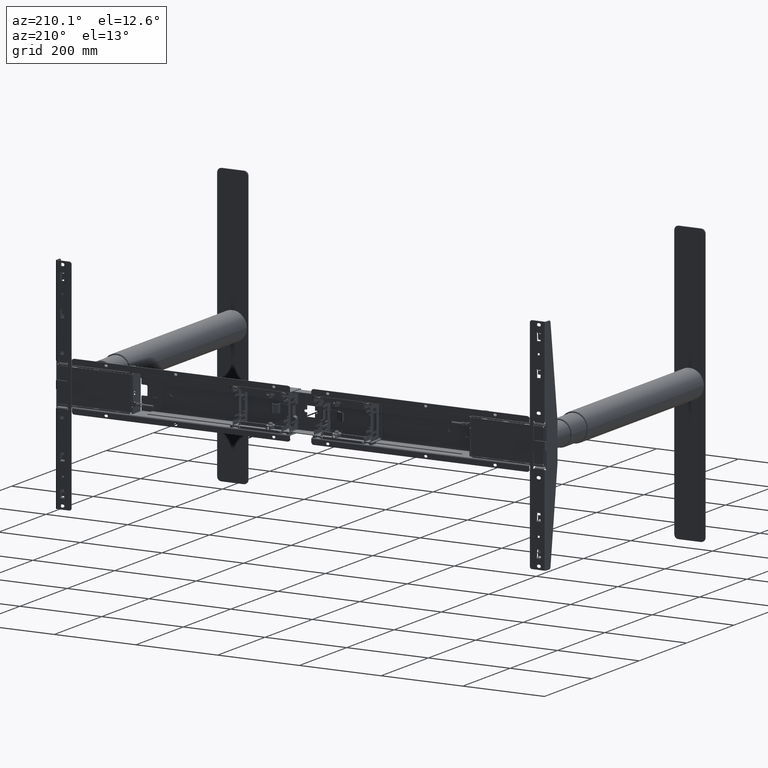
[diagram: clean part render]
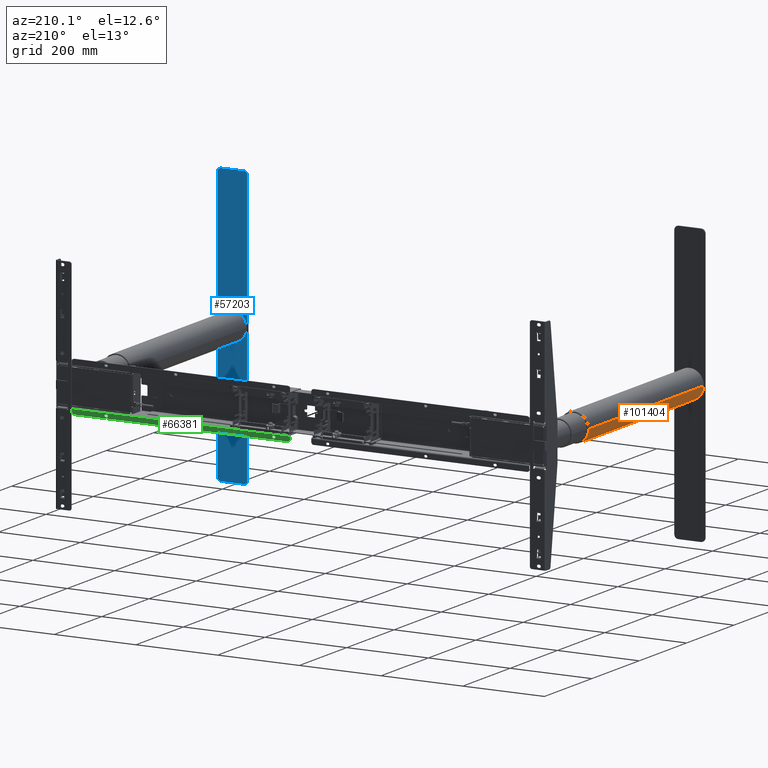
[diagram: same view with three faces highlighted in distinct colors, each labeled with its STEP entity id]
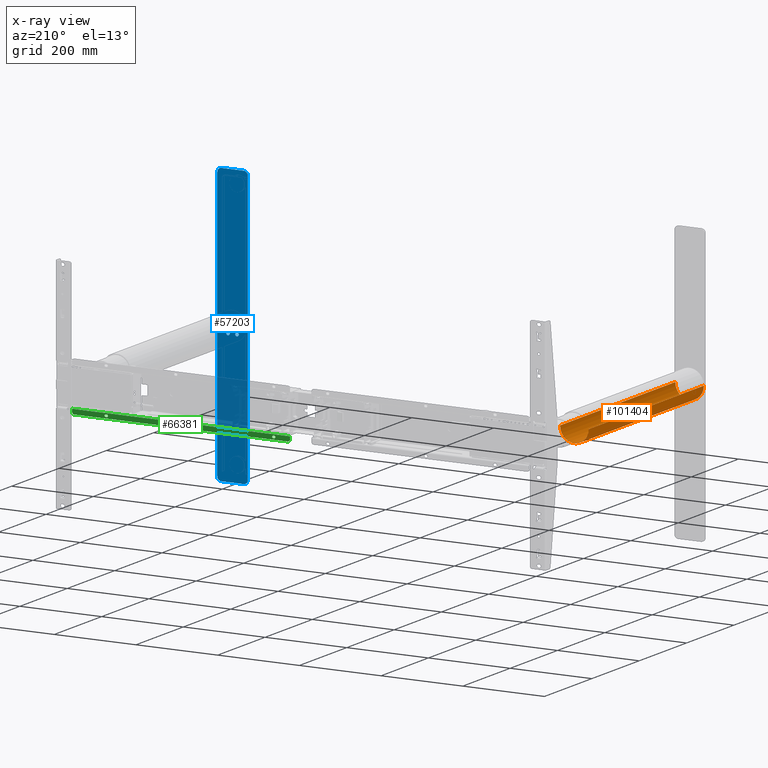
[diagram: x-ray of the same camera — body ghosted, the three highlighted faces saturated]
A machine part, auxiliary view with three faces highlighted in distinct colors.
The next image is the same camera in x-ray (body ghosted, the three faces saturated) — at least one of them is partly hidden behind the body in this view.
Their STEP definitions:

[orange] entity #101404 — the highlighted cylindrical surface (edge-blend (fillet) strip) has radius 35 mm, axis along (-0, -1, -0).
#341 = CARTESIAN_POINT ( 'NONE',  ( -559.5000000000000000, 27.09999999999788400, 9.110499691193323545E-14 ) ) ;
#2463 = CARTESIAN_POINT ( 'NONE',  ( -524.5000000000000000, 27.09999999999788045, 1.274977819952109655E-13 ) ) ;
#3546 = DIRECTION ( 'NONE',  ( -1.110223024625156540E-16, -1.000000000000000000, -1.494570229292720333E-16 ) ) ;
#8898 = EDGE_CURVE ( 'NONE', #22473, #12988, #31280, .T. ) ;
#11792 = AXIS2_PLACEMENT_3D ( 'NONE', #49158, #75175, #92356 ) ;
#12988 = VERTEX_POINT ( 'NONE', #96819 ) ;
#22473 = VERTEX_POINT ( 'NONE', #46096 ) ;
#31280 = LINE ( 'NONE', #90035, #97316 ) ;
#31908 = DIRECTION ( 'NONE',  ( 1.110223024625156540E-16, 1.000000000000000000, 1.494570229292720333E-16 ) ) ;
#33461 = DIRECTION ( 'NONE',  ( -1.110223024625156540E-16, -1.000000000000000000, -1.494570229292720333E-16 ) ) ;
#34124 = CIRCLE ( 'NONE', #108399, 35.00000000000002842 ) ;
#39146 = EDGE_CURVE ( 'NONE', #67488, #48380, #95003, .T. ) ;
#41702 = AXIS2_PLACEMENT_3D ( 'NONE', #72733, #54977, #51876 ) ;
#43237 = EDGE_CURVE ( 'NONE', #48380, #12988, #34124, .T. ) ;
#46096 = CARTESIAN_POINT ( 'NONE',  ( -594.4999999999998863, 514.0999999999978627, 1.317840457922267462E-13 ) ) ;
#48380 = VERTEX_POINT ( 'NONE', #2463 ) ;
#49158 = CARTESIAN_POINT ( 'NONE',  ( -559.4999999999998863, 514.0999999999978627, 1.638905670784887334E-13 ) ) ;
#51876 = DIRECTION ( 'NONE',  ( 1.000000000000000000, 0.000000000000000000, 0.000000000000000000 ) ) ;
#54977 = DIRECTION ( 'NONE',  ( -1.110223024625156540E-16, -1.000000000000000000, -1.494570229292720333E-16 ) ) ;
#57711 = VECTOR ( 'NONE', #3546, 1000.000000000000000 ) ;
#59510 = ORIENTED_EDGE ( 'NONE', *, *, #70687, .F. ) ;
#60190 = CYLINDRICAL_SURFACE ( 'NONE', #41702, 35.00000000000002842 ) ;
#63482 = ORIENTED_EDGE ( 'NONE', *, *, #8898, .F. ) ;
#63782 = EDGE_LOOP ( 'NONE', ( #63482, #59510, #93836, #85668 ) ) ;
#63878 = FACE_OUTER_BOUND ( 'NONE', #63782, .T. ) ;
#67488 = VERTEX_POINT ( 'NONE', #99492 ) ;
#70687 = EDGE_CURVE ( 'NONE', #67488, #22473, #89635, .T. ) ;
#72733 = CARTESIAN_POINT ( 'NONE',  ( -559.4999999999998863, 514.0999999999978627, 1.638905670784887334E-13 ) ) ;
#74588 = DIRECTION ( 'NONE',  ( -1.000000000000000000, 9.912705577010318154E-17, 0.000000000000000000 ) ) ;
#75175 = DIRECTION ( 'NONE',  ( 1.110223024625156540E-16, 1.000000000000000000, 1.494570229292720333E-16 ) ) ;
#85668 = ORIENTED_EDGE ( 'NONE', *, *, #43237, .T. ) ;
#89635 = CIRCLE ( 'NONE', #11792, 35.00000000000002842 ) ;
#90035 = CARTESIAN_POINT ( 'NONE',  ( -594.4999999999998863, 514.0999999999978627, 1.681768308755044636E-13 ) ) ;
#92356 = DIRECTION ( 'NONE',  ( -1.000000000000000000, 0.000000000000000000, 0.000000000000000000 ) ) ;
#93836 = ORIENTED_EDGE ( 'NONE', *, *, #39146, .T. ) ;
#95003 = LINE ( 'NONE', #105471, #57711 ) ;
#96819 = CARTESIAN_POINT ( 'NONE',  ( -594.5000000000000000, 27.09999999999788756, 1.317840457922268219E-13 ) ) ;
#97316 = VECTOR ( 'NONE', #33461, 1000.000000000000000 ) ;
#99492 = CARTESIAN_POINT ( 'NONE',  ( -524.4999999999998863, 514.0999999999978627, 1.274977819952110160E-13 ) ) ;
#101404 = ADVANCED_FACE ( 'NONE', ( #63878 ), #60190, .T. ) ;
#105471 = CARTESIAN_POINT ( 'NONE',  ( -524.4999999999998863, 514.0999999999978627, 1.638905670784887334E-13 ) ) ;
#108399 = AXIS2_PLACEMENT_3D ( 'NONE', #341, #31908, #74588 ) ;

[blue] entity #57203 — the highlighted planar face has unit normal (-0, 1, -0).
#354 = DIRECTION ( 'NONE',  ( 1.690145412092840586E-16, -1.000000000000000000, 2.981735092082834855E-17 ) ) ;
#1576 = CIRCLE ( 'NONE', #77649, 4.249999999999941380 ) ;
#1992 = EDGE_CURVE ( 'NONE', #54484, #64560, #7629, .T. ) ;
#2180 = CARTESIAN_POINT ( 'NONE',  ( 548.4999999999997726, 27.10000000000204778, 17.00000000000001421 ) ) ;
#3535 = CARTESIAN_POINT ( 'NONE',  ( 570.4999999999996589, 27.10000000000204778, -21.24999999999995737 ) ) ;
#3885 = CIRCLE ( 'NONE', #102999, 4.249999999999941380 ) ;
#4969 = DIRECTION ( 'NONE',  ( -9.540979117872389715E-17, 2.981735092082833006E-17, 1.000000000000000000 ) ) ;
#5404 = CARTESIAN_POINT ( 'NONE',  ( 596.9999999999996589, 27.10000000000212239, 329.9999999999989768 ) ) ;
#5615 = DIRECTION ( 'NONE',  ( 1.000000000000000000, 1.690145412092841325E-16, 9.540979117872495719E-17 ) ) ;
#5711 = CARTESIAN_POINT ( 'NONE',  ( 586.9999999999996589, 27.10000000000204778, -339.9999999999990905 ) ) ;
#7629 = CIRCLE ( 'NONE', #94065, 10.00000000000000888 ) ;
#7710 = VERTEX_POINT ( 'NONE', #64063 ) ;
#8270 = CARTESIAN_POINT ( 'NONE',  ( 548.4999999999998863, 27.10000000000204778, -12.75000000000007283 ) ) ;
#9042 = EDGE_LOOP ( 'NONE', ( #63050, #81483, #106113, #81785, #76589, #14093, #95821, #22510 ) ) ;
#9617 = CARTESIAN_POINT ( 'NONE',  ( 586.9999999999997726, 27.10000000000211884, 329.9999999999990905 ) ) ;
#10294 = VERTEX_POINT ( 'NONE', #5711 ) ;
#10566 = CARTESIAN_POINT ( 'NONE',  ( 548.4999999999998863, 27.10000000000204778, -17.00000000000001421 ) ) ;
#10627 = CARTESIAN_POINT ( 'NONE',  ( 548.4999999999998863, 27.10000000000204778, -17.00000000000001421 ) ) ;
#10668 = CARTESIAN_POINT ( 'NONE',  ( 586.9999999999996589, 27.10000000000211884, 339.9999999999990905 ) ) ;
#12368 = CIRCLE ( 'NONE', #69008, 4.249999999999941380 ) ;
#13919 = DIRECTION ( 'NONE',  ( 0.000000000000000000, 0.000000000000000000, 1.000000000000000000 ) ) ;
#14093 = ORIENTED_EDGE ( 'NONE', *, *, #52308, .F. ) ;
#15542 = CARTESIAN_POINT ( 'NONE',  ( 586.9999999999997726, 27.10000000000211884, 339.9999999999990905 ) ) ;
#16470 = FACE_BOUND ( 'NONE', #65989, .T. ) ;
#17077 = DIRECTION ( 'NONE',  ( 0.000000000000000000, 0.000000000000000000, -1.000000000000000000 ) ) ;
#18326 = CARTESIAN_POINT ( 'NONE',  ( 570.4999999999996589, 27.10000000000205134, 17.00000000000001421 ) ) ;
#19248 = DIRECTION ( 'NONE',  ( 0.000000000000000000, 0.000000000000000000, 1.000000000000000000 ) ) ;
#19988 = DIRECTION ( 'NONE',  ( 1.690145412092840586E-16, -1.000000000000000000, 2.981735092082834855E-17 ) ) ;
#20208 = EDGE_CURVE ( 'NONE', #82881, #54484, #22689, .T. ) ;
#21183 = EDGE_CURVE ( 'NONE', #92128, #84836, #81286, .T. ) ;
#21840 = CARTESIAN_POINT ( 'NONE',  ( 521.9999999999997726, 27.10000000000203357, -329.9999999999990337 ) ) ;
#21907 = EDGE_CURVE ( 'NONE', #84836, #92128, #84858, .T. ) ;
#22510 = ORIENTED_EDGE ( 'NONE', *, *, #95725, .F. ) ;
#22689 = LINE ( 'NONE', #73079, #89917 ) ;
#22997 = CARTESIAN_POINT ( 'NONE',  ( 570.4999999999996589, 27.10000000000205134, 12.75000000000007461 ) ) ;
#25094 = VECTOR ( 'NONE', #5615, 1000.000000000000000 ) ;
#25099 = VECTOR ( 'NONE', #79867, 1000.000000000000000 ) ;
#25165 = AXIS2_PLACEMENT_3D ( 'NONE', #101824, #58616, #17077 ) ;
#26230 = CIRCLE ( 'NONE', #79280, 4.249999999999941380 ) ;
#27864 = AXIS2_PLACEMENT_3D ( 'NONE', #100319, #73141, #13919 ) ;
#28097 = DIRECTION ( 'NONE',  ( 1.690145412092840586E-16, -1.000000000000000000, 2.981735092082834855E-17 ) ) ;
#28212 = DIRECTION ( 'NONE',  ( 0.000000000000000000, 0.000000000000000000, -1.000000000000000000 ) ) ;
#28696 = EDGE_LOOP ( 'NONE', ( #82349, #105681 ) ) ;
#28720 = CARTESIAN_POINT ( 'NONE',  ( 521.9999999999997726, 27.10000000000203357, -329.9999999999990337 ) ) ;
#28740 = DIRECTION ( 'NONE',  ( 1.690145412092840586E-16, -1.000000000000000000, 2.981735092082834855E-17 ) ) ;
#28846 = DIRECTION ( 'NONE',  ( 0.000000000000000000, 0.000000000000000000, 1.000000000000000000 ) ) ;
#29412 = ORIENTED_EDGE ( 'NONE', *, *, #95538, .T. ) ;
#32342 = DIRECTION ( 'NONE',  ( 1.690145412092840586E-16, -1.000000000000000000, 2.981735092082834855E-17 ) ) ;
#33480 = CARTESIAN_POINT ( 'NONE',  ( 548.4999999999997726, 27.10000000000204778, 21.24999999999995737 ) ) ;
#34762 = CIRCLE ( 'NONE', #57793, 9.999999999999953815 ) ;
#34797 = ORIENTED_EDGE ( 'NONE', *, *, #99861, .T. ) ;
#34968 = CARTESIAN_POINT ( 'NONE',  ( 531.9999999999997726, 27.10000000000198028, -339.9999999999990905 ) ) ;
#35915 = DIRECTION ( 'NONE',  ( 1.690145412092840586E-16, -1.000000000000000000, 2.981735092082834855E-17 ) ) ;
#36793 = CARTESIAN_POINT ( 'NONE',  ( 570.4999999999996589, 27.10000000000204778, -12.75000000000007461 ) ) ;
#37170 = LINE ( 'NONE', #10668, #25099 ) ;
#37850 = DIRECTION ( 'NONE',  ( 9.540979117872389715E-17, -2.981735092082833006E-17, -1.000000000000000000 ) ) ;
#38136 = ORIENTED_EDGE ( 'NONE', *, *, #94410, .T. ) ;
#38357 = VERTEX_POINT ( 'NONE', #28720 ) ;
#39973 = EDGE_CURVE ( 'NONE', #38357, #72374, #34762, .T. ) ;
#40357 = CARTESIAN_POINT ( 'NONE',  ( 531.9999999999997726, 27.10000000000205489, 339.9999999999990905 ) ) ;
#42138 = CIRCLE ( 'NONE', #65194, 4.249999999999941380 ) ;
#42227 = AXIS2_PLACEMENT_3D ( 'NONE', #58027, #107885, #108416 ) ;
#43436 = EDGE_LOOP ( 'NONE', ( #38136, #67007 ) ) ;
#44244 = DIRECTION ( 'NONE',  ( 0.000000000000000000, 0.000000000000000000, 1.000000000000000000 ) ) ;
#46206 = AXIS2_PLACEMENT_3D ( 'NONE', #70874, #28740, #28212 ) ;
#48415 = LINE ( 'NONE', #21840, #102404 ) ;
#50119 = CARTESIAN_POINT ( 'NONE',  ( 548.4999999999997726, 27.10000000000204778, 12.75000000000007283 ) ) ;
#51321 = ORIENTED_EDGE ( 'NONE', *, *, #21183, .T. ) ;
#51419 = VERTEX_POINT ( 'NONE', #3535 ) ;
#52308 = EDGE_CURVE ( 'NONE', #72374, #10294, #64906, .T. ) ;
#52673 = DIRECTION ( 'NONE',  ( 1.690145412092840586E-16, -1.000000000000000000, 2.981735092082834855E-17 ) ) ;
#52833 = EDGE_CURVE ( 'NONE', #91090, #7710, #106625, .T. ) ;
#54423 = CIRCLE ( 'NONE', #27864, 4.249999999999941380 ) ;
#54484 = VERTEX_POINT ( 'NONE', #5404 ) ;
#57203 = ADVANCED_FACE ( 'NONE', ( #16470, #91284, #66337, #66921, #83504 ), #57442, .T. ) ;
#57442 = PLANE ( 'NONE',  #42227 ) ;
#57793 = AXIS2_PLACEMENT_3D ( 'NONE', #82890, #74564, #91754 ) ;
#57972 = CARTESIAN_POINT ( 'NONE',  ( 570.4999999999996589, 27.10000000000204778, -17.00000000000001421 ) ) ;
#58027 = CARTESIAN_POINT ( 'NONE',  ( 531.9999999999996589, 27.10000000000205489, 329.9999999999990905 ) ) ;
#58332 = VERTEX_POINT ( 'NONE', #22997 ) ;
#58616 = DIRECTION ( 'NONE',  ( 1.690145412092840586E-16, -1.000000000000000000, 2.981735092082834855E-17 ) ) ;
#61810 = CARTESIAN_POINT ( 'NONE',  ( 570.4999999999996589, 27.10000000000205134, 21.24999999999995737 ) ) ;
#63050 = ORIENTED_EDGE ( 'NONE', *, *, #52833, .F. ) ;
#64063 = CARTESIAN_POINT ( 'NONE',  ( 521.9999999999996589, 27.10000000000210818, 329.9999999999989768 ) ) ;
#64560 = VERTEX_POINT ( 'NONE', #15542 ) ;
#64906 = LINE ( 'NONE', #105898, #25094 ) ;
#65194 = AXIS2_PLACEMENT_3D ( 'NONE', #2180, #35915, #44244 ) ;
#65989 = EDGE_LOOP ( 'NONE', ( #29412, #34797 ) ) ;
#66337 = FACE_BOUND ( 'NONE', #28696, .T. ) ;
#66921 = FACE_BOUND ( 'NONE', #67698, .T. ) ;
#67007 = ORIENTED_EDGE ( 'NONE', *, *, #97452, .T. ) ;
#67698 = EDGE_LOOP ( 'NONE', ( #51321, #77430 ) ) ;
#69008 = AXIS2_PLACEMENT_3D ( 'NONE', #18326, #52673, #78141 ) ;
#69134 = CARTESIAN_POINT ( 'NONE',  ( 570.4999999999996589, 27.10000000000204778, -17.00000000000001421 ) ) ;
#70747 = VERTEX_POINT ( 'NONE', #61810 ) ;
#70874 = CARTESIAN_POINT ( 'NONE',  ( 586.9999999999997726, 27.10000000000204778, -329.9999999999990905 ) ) ;
#72374 = VERTEX_POINT ( 'NONE', #34968 ) ;
#72480 = AXIS2_PLACEMENT_3D ( 'NONE', #10627, #19988, #28846 ) ;
#73079 = CARTESIAN_POINT ( 'NONE',  ( 596.9999999999997726, 27.10000000000204778, -329.9999999999990337 ) ) ;
#73141 = DIRECTION ( 'NONE',  ( 1.690145412092840586E-16, -1.000000000000000000, 2.981735092082834855E-17 ) ) ;
#73963 = VERTEX_POINT ( 'NONE', #50119 ) ;
#74564 = DIRECTION ( 'NONE',  ( 1.690145412092840586E-16, -1.000000000000000000, 2.981735092082834855E-17 ) ) ;
#74882 = EDGE_CURVE ( 'NONE', #10294, #82881, #94033, .T. ) ;
#75265 = CARTESIAN_POINT ( 'NONE',  ( 548.4999999999997726, 27.10000000000204778, 17.00000000000001421 ) ) ;
#76589 = ORIENTED_EDGE ( 'NONE', *, *, #74882, .F. ) ;
#77069 = DIRECTION ( 'NONE',  ( 0.000000000000000000, 0.000000000000000000, 1.000000000000000000 ) ) ;
#77430 = ORIENTED_EDGE ( 'NONE', *, *, #21907, .T. ) ;
#77649 = AXIS2_PLACEMENT_3D ( 'NONE', #57972, #354, #91793 ) ;
#78141 = DIRECTION ( 'NONE',  ( 0.000000000000000000, 0.000000000000000000, 1.000000000000000000 ) ) ;
#79280 = AXIS2_PLACEMENT_3D ( 'NONE', #75265, #105060, #19248 ) ;
#79867 = DIRECTION ( 'NONE',  ( -1.000000000000000000, -1.690145412092841325E-16, -9.540979117872495719E-17 ) ) ;
#81286 = CIRCLE ( 'NONE', #95421, 4.249999999999943157 ) ;
#81483 = ORIENTED_EDGE ( 'NONE', *, *, #99602, .F. ) ;
#81785 = ORIENTED_EDGE ( 'NONE', *, *, #20208, .F. ) ;
#82349 = ORIENTED_EDGE ( 'NONE', *, *, #92934, .T. ) ;
#82881 = VERTEX_POINT ( 'NONE', #107200 ) ;
#82890 = CARTESIAN_POINT ( 'NONE',  ( 531.9999999999997726, 27.10000000000198028, -329.9999999999990905 ) ) ;
#83504 = FACE_OUTER_BOUND ( 'NONE', #9042, .T. ) ;
#84836 = VERTEX_POINT ( 'NONE', #108623 ) ;
#84858 = CIRCLE ( 'NONE', #72480, 4.249999999999943157 ) ;
#85919 = DIRECTION ( 'NONE',  ( 1.690145412092840586E-16, -1.000000000000000000, 2.981735092082834855E-17 ) ) ;
#87669 = DIRECTION ( 'NONE',  ( 0.000000000000000000, 0.000000000000000000, 1.000000000000000000 ) ) ;
#89917 = VECTOR ( 'NONE', #4969, 1000.000000000000000 ) ;
#91090 = VERTEX_POINT ( 'NONE', #40357 ) ;
#91284 = FACE_BOUND ( 'NONE', #43436, .T. ) ;
#91754 = DIRECTION ( 'NONE',  ( 0.000000000000000000, 0.000000000000000000, -1.000000000000000000 ) ) ;
#91793 = DIRECTION ( 'NONE',  ( 0.000000000000000000, 0.000000000000000000, 1.000000000000000000 ) ) ;
#92128 = VERTEX_POINT ( 'NONE', #8270 ) ;
#92934 = EDGE_CURVE ( 'NONE', #104373, #73963, #42138, .T. ) ;
#94033 = CIRCLE ( 'NONE', #46206, 9.999999999999953815 ) ;
#94065 = AXIS2_PLACEMENT_3D ( 'NONE', #9617, #32342, #87669 ) ;
#94410 = EDGE_CURVE ( 'NONE', #70747, #58332, #54423, .T. ) ;
#95421 = AXIS2_PLACEMENT_3D ( 'NONE', #10566, #85919, #77069 ) ;
#95538 = EDGE_CURVE ( 'NONE', #95634, #51419, #1576, .T. ) ;
#95634 = VERTEX_POINT ( 'NONE', #36793 ) ;
#95725 = EDGE_CURVE ( 'NONE', #7710, #38357, #48415, .T. ) ;
#95821 = ORIENTED_EDGE ( 'NONE', *, *, #39973, .F. ) ;
#97452 = EDGE_CURVE ( 'NONE', #58332, #70747, #12368, .T. ) ;
#99602 = EDGE_CURVE ( 'NONE', #64560, #91090, #37170, .T. ) ;
#99861 = EDGE_CURVE ( 'NONE', #51419, #95634, #3885, .T. ) ;
#100319 = CARTESIAN_POINT ( 'NONE',  ( 570.4999999999996589, 27.10000000000205134, 17.00000000000001421 ) ) ;
#101824 = CARTESIAN_POINT ( 'NONE',  ( 531.9999999999996589, 27.10000000000205489, 329.9999999999990905 ) ) ;
#102404 = VECTOR ( 'NONE', #37850, 1000.000000000000000 ) ;
#102923 = DIRECTION ( 'NONE',  ( 0.000000000000000000, 0.000000000000000000, 1.000000000000000000 ) ) ;
#102999 = AXIS2_PLACEMENT_3D ( 'NONE', #69134, #28097, #102923 ) ;
#104373 = VERTEX_POINT ( 'NONE', #33480 ) ;
#105060 = DIRECTION ( 'NONE',  ( 1.690145412092840586E-16, -1.000000000000000000, 2.981735092082834855E-17 ) ) ;
#105681 = ORIENTED_EDGE ( 'NONE', *, *, #105726, .T. ) ;
#105726 = EDGE_CURVE ( 'NONE', #73963, #104373, #26230, .T. ) ;
#105898 = CARTESIAN_POINT ( 'NONE',  ( 586.9999999999996589, 27.10000000000204778, -339.9999999999990905 ) ) ;
#106113 = ORIENTED_EDGE ( 'NONE', *, *, #1992, .F. ) ;
#106625 = CIRCLE ( 'NONE', #25165, 10.00000000000000888 ) ;
#107200 = CARTESIAN_POINT ( 'NONE',  ( 596.9999999999997726, 27.10000000000204778, -329.9999999999990337 ) ) ;
#107885 = DIRECTION ( 'NONE',  ( -1.690145412092840339E-16, 1.000000000000000000, -2.981735092082834238E-17 ) ) ;
#108416 = DIRECTION ( 'NONE',  ( 9.540979117872389715E-17, -2.981735092082832390E-17, -1.000000000000000000 ) ) ;
#108623 = CARTESIAN_POINT ( 'NONE',  ( 548.4999999999998863, 27.10000000000204778, -21.24999999999995737 ) ) ;

[green] entity #66381 — the highlighted planar face has unit normal (0, 1, -0).
#1108 = EDGE_CURVE ( 'NONE', #61897, #64429, #97697, .T. ) ;
#2876 = DIRECTION ( 'NONE',  ( -1.000000000000000000, -0.000000000000000000, -0.000000000000000000 ) ) ;
#3303 = CARTESIAN_POINT ( 'NONE',  ( 25.99999999999974420, 704.4999999999989768, -48.50000000000002132 ) ) ;
#3364 = PLANE ( 'NONE',  #27847 ) ;
#4624 = VECTOR ( 'NONE', #90506, 1000.000000000000000 ) ;
#6304 = AXIS2_PLACEMENT_3D ( 'NONE', #100067, #32420, #24143 ) ;
#8379 = AXIS2_PLACEMENT_3D ( 'NONE', #68952, #102738, #26812 ) ;
#8399 = VERTEX_POINT ( 'NONE', #9725 ) ;
#8485 = EDGE_CURVE ( 'NONE', #43291, #25904, #43919, .T. ) ;
#8742 = EDGE_CURVE ( 'NONE', #54459, #20204, #69561, .T. ) ;
#9725 = CARTESIAN_POINT ( 'NONE',  ( 553.9999999999997726, 704.4999999999989768, -60.50000000000002132 ) ) ;
#10585 = VERTEX_POINT ( 'NONE', #47673 ) ;
#11122 = VECTOR ( 'NONE', #42389, 1000.000000000000000 ) ;
#13275 = CIRCLE ( 'NONE', #78725, 2.750000000000002665 ) ;
#14641 = CARTESIAN_POINT ( 'NONE',  ( 67.24999999999978684, 704.4999999999990905, -51.74999999999997158 ) ) ;
#14897 = LINE ( 'NONE', #57521, #11122 ) ;
#15319 = VECTOR ( 'NONE', #61880, 1000.000000000000000 ) ;
#15841 = LINE ( 'NONE', #49602, #25876 ) ;
#16758 = ORIENTED_EDGE ( 'NONE', *, *, #1108, .T. ) ;
#16896 = ORIENTED_EDGE ( 'NONE', *, *, #46002, .F. ) ;
#17623 = CARTESIAN_POINT ( 'NONE',  ( 25.99999999999974420, 704.4999999999989768, -47.00000000000002132 ) ) ;
#18363 = EDGE_LOOP ( 'NONE', ( #32561, #96086, #72936, #47950 ) ) ;
#19636 = DIRECTION ( 'NONE',  ( 0.000000000000000000, 1.000000000000000000, 5.139921410301652768E-16 ) ) ;
#19959 = FACE_BOUND ( 'NONE', #101167, .T. ) ;
#20204 = VERTEX_POINT ( 'NONE', #3303 ) ;
#20304 = EDGE_CURVE ( 'NONE', #25904, #10585, #25378, .T. ) ;
#20446 = DIRECTION ( 'NONE',  ( 0.000000000000000000, 0.000000000000000000, -1.000000000000000000 ) ) ;
#20689 = VECTOR ( 'NONE', #66771, 1000.000000000000000 ) ;
#21897 = CARTESIAN_POINT ( 'NONE',  ( 559.9999999999998863, 704.4999999999989768, -54.50000000000002132 ) ) ;
#24032 = CARTESIAN_POINT ( 'NONE',  ( 474.7499999999997158, 704.4999999999989768, -51.74999999999997158 ) ) ;
#24081 = LINE ( 'NONE', #57874, #20689 ) ;
#24143 = DIRECTION ( 'NONE',  ( 0.000000000000000000, 0.000000000000000000, -1.000000000000000000 ) ) ;
#24323 = ORIENTED_EDGE ( 'NONE', *, *, #8742, .F. ) ;
#25378 = LINE ( 'NONE', #82501, #97092 ) ;
#25669 = ORIENTED_EDGE ( 'NONE', *, *, #35330, .F. ) ;
#25876 = VECTOR ( 'NONE', #109442, 1000.000000000000000 ) ;
#25904 = VERTEX_POINT ( 'NONE', #33298 ) ;
#26072 = CIRCLE ( 'NONE', #8379, 2.750000000000002665 ) ;
#26362 = CARTESIAN_POINT ( 'NONE',  ( 304.7499999999997158, 704.4999999999989768, -51.74999999999997158 ) ) ;
#26692 = AXIS2_PLACEMENT_3D ( 'NONE', #96072, #19636, #36784 ) ;
#26812 = DIRECTION ( 'NONE',  ( 0.000000000000000000, 0.000000000000000000, -1.000000000000000000 ) ) ;
#26984 = LINE ( 'NONE', #17623, #15319 ) ;
#27847 = AXIS2_PLACEMENT_3D ( 'NONE', #37105, #70943, #28817 ) ;
#28817 = DIRECTION ( 'NONE',  ( 0.000000000000000000, 5.139921410301652768E-16, 1.000000000000000000 ) ) ;
#30087 = AXIS2_PLACEMENT_3D ( 'NONE', #96343, #35443, #20446 ) ;
#30127 = CARTESIAN_POINT ( 'NONE',  ( 67.24999999999978684, 704.4999999999990905, -54.49999999999997158 ) ) ;
#31323 = EDGE_CURVE ( 'NONE', #87420, #43291, #24081, .T. ) ;
#32420 = DIRECTION ( 'NONE',  ( 0.000000000000000000, 1.000000000000000000, 5.139921410301652768E-16 ) ) ;
#32561 = ORIENTED_EDGE ( 'NONE', *, *, #48332, .F. ) ;
#33298 = CARTESIAN_POINT ( 'NONE',  ( 67.24999999999978684, 704.4999999999990905, -57.24999999999997158 ) ) ;
#34665 = CARTESIAN_POINT ( 'NONE',  ( 537.9999999999997726, 704.4999999999989768, -48.50000000000002132 ) ) ;
#34977 = EDGE_CURVE ( 'NONE', #74960, #75426, #99173, .T. ) ;
#35330 = EDGE_CURVE ( 'NONE', #101714, #36759, #88611, .T. ) ;
#35443 = DIRECTION ( 'NONE',  ( 0.000000000000000000, 1.000000000000000000, 5.139921410301652768E-16 ) ) ;
#35706 = DIRECTION ( 'NONE',  ( 0.000000000000000000, 1.000000000000000000, -5.139921410301652768E-16 ) ) ;
#36759 = VERTEX_POINT ( 'NONE', #26362 ) ;
#36784 = DIRECTION ( 'NONE',  ( 0.000000000000000000, 0.000000000000000000, -1.000000000000000000 ) ) ;
#36785 = DIRECTION ( 'NONE',  ( 0.000000000000000000, 0.000000000000000000, 1.000000000000000000 ) ) ;
#37105 = CARTESIAN_POINT ( 'NONE',  ( 537.9999999999997726, 704.4999999999989768, -47.00000000000002132 ) ) ;
#37709 = CARTESIAN_POINT ( 'NONE',  ( 537.9999999999997726, 704.4999999999989768, -60.50000000000002132 ) ) ;
#41633 = EDGE_CURVE ( 'NONE', #8399, #61897, #106990, .T. ) ;
#42389 = DIRECTION ( 'NONE',  ( 0.000000000000000000, -5.139921410301652768E-16, -1.000000000000000000 ) ) ;
#43291 = VERTEX_POINT ( 'NONE', #14641 ) ;
#43466 = EDGE_CURVE ( 'NONE', #54459, #90487, #14897, .T. ) ;
#43486 = CARTESIAN_POINT ( 'NONE',  ( 31.99999999999975131, 704.4999999999989768, -54.50000000000002132 ) ) ;
#43490 = ORIENTED_EDGE ( 'NONE', *, *, #82332, .F. ) ;
#43720 = CARTESIAN_POINT ( 'NONE',  ( 553.9999999999997726, 704.4999999999989768, -54.50000000000002132 ) ) ;
#43919 = CIRCLE ( 'NONE', #93473, 2.750000000000002665 ) ;
#44066 = EDGE_LOOP ( 'NONE', ( #54386, #16758, #43490, #24323, #47628, #83679 ) ) ;
#45081 = DIRECTION ( 'NONE',  ( 0.000000000000000000, 1.000000000000000000, 5.139921410301652768E-16 ) ) ;
#45363 = VECTOR ( 'NONE', #2876, 1000.000000000000000 ) ;
#46002 = EDGE_CURVE ( 'NONE', #51103, #108171, #13275, .T. ) ;
#47628 = ORIENTED_EDGE ( 'NONE', *, *, #43466, .T. ) ;
#47673 = CARTESIAN_POINT ( 'NONE',  ( 64.74999999999975842, 704.4999999999990905, -57.24999999999997158 ) ) ;
#47950 = ORIENTED_EDGE ( 'NONE', *, *, #31323, .F. ) ;
#48332 = EDGE_CURVE ( 'NONE', #10585, #87420, #103548, .T. ) ;
#49206 = AXIS2_PLACEMENT_3D ( 'NONE', #43720, #59837, #94167 ) ;
#49402 = EDGE_CURVE ( 'NONE', #75426, #51103, #108201, .T. ) ;
#49602 = CARTESIAN_POINT ( 'NONE',  ( 304.7499999999997158, 704.4999999999990905, -51.74999999999997158 ) ) ;
#51103 = VERTEX_POINT ( 'NONE', #64184 ) ;
#52793 = CARTESIAN_POINT ( 'NONE',  ( 477.2499999999997158, 704.4999999999990905, -54.49999999999997158 ) ) ;
#53275 = CARTESIAN_POINT ( 'NONE',  ( 474.7499999999997158, 704.4999999999990905, -57.24999999999997158 ) ) ;
#53746 = FACE_OUTER_BOUND ( 'NONE', #44066, .T. ) ;
#54386 = ORIENTED_EDGE ( 'NONE', *, *, #41633, .T. ) ;
#54397 = DIRECTION ( 'NONE',  ( 0.000000000000000000, 1.000000000000000000, 5.139921410301652768E-16 ) ) ;
#54459 = VERTEX_POINT ( 'NONE', #85257 ) ;
#57499 = CARTESIAN_POINT ( 'NONE',  ( 25.99999999999974420, 704.4999999999989768, -54.50000000000002132 ) ) ;
#57521 = CARTESIAN_POINT ( 'NONE',  ( 559.9999999999998863, 704.4999999999989768, -47.00000000000002132 ) ) ;
#57874 = CARTESIAN_POINT ( 'NONE',  ( 64.74999999999975842, 704.4999999999990905, -51.74999999999997158 ) ) ;
#59445 = ORIENTED_EDGE ( 'NONE', *, *, #34977, .F. ) ;
#59837 = DIRECTION ( 'NONE',  ( 0.000000000000000000, 1.000000000000000000, -5.139921410301652768E-16 ) ) ;
#60735 = CARTESIAN_POINT ( 'NONE',  ( 31.99999999999975131, 704.4999999999989768, -60.50000000000002132 ) ) ;
#60839 = CARTESIAN_POINT ( 'NONE',  ( 477.2499999999997158, 704.4999999999990905, -57.24999999999997158 ) ) ;
#61880 = DIRECTION ( 'NONE',  ( 0.000000000000000000, -5.139921410301651782E-16, -1.000000000000000000 ) ) ;
#61897 = VERTEX_POINT ( 'NONE', #60735 ) ;
#62084 = FACE_BOUND ( 'NONE', #67456, .T. ) ;
#62339 = CARTESIAN_POINT ( 'NONE',  ( 307.2499999999997726, 704.4999999999990905, -51.74999999999997158 ) ) ;
#64184 = CARTESIAN_POINT ( 'NONE',  ( 477.2499999999997158, 704.4999999999990905, -51.74999999999997158 ) ) ;
#64429 = VERTEX_POINT ( 'NONE', #57499 ) ;
#64928 = DIRECTION ( 'NONE',  ( -1.000000000000000000, -0.000000000000000000, -0.000000000000000000 ) ) ;
#66381 = ADVANCED_FACE ( 'NONE', ( #104194, #62084, #19959, #53746 ), #3364, .T. ) ;
#66771 = DIRECTION ( 'NONE',  ( 1.000000000000000000, 0.000000000000000000, 0.000000000000000000 ) ) ;
#67456 = EDGE_LOOP ( 'NONE', ( #25669, #108446, #91184, #93297 ) ) ;
#68277 = CARTESIAN_POINT ( 'NONE',  ( 304.7499999999997158, 704.4999999999990905, -57.24999999999997158 ) ) ;
#68952 = CARTESIAN_POINT ( 'NONE',  ( 307.2499999999997726, 704.4999999999990905, -54.49999999999997158 ) ) ;
#69381 = LINE ( 'NONE', #53275, #45363 ) ;
#69561 = LINE ( 'NONE', #34665, #74021 ) ;
#70708 = VERTEX_POINT ( 'NONE', #62339 ) ;
#70943 = DIRECTION ( 'NONE',  ( 0.000000000000000000, 1.000000000000000000, -5.139921410301652768E-16 ) ) ;
#71157 = DIRECTION ( 'NONE',  ( 0.000000000000000000, 0.000000000000000000, -1.000000000000000000 ) ) ;
#71550 = LINE ( 'NONE', #80411, #73748 ) ;
#71988 = CARTESIAN_POINT ( 'NONE',  ( 474.7499999999997158, 704.4999999999990905, -57.24999999999997158 ) ) ;
#72128 = DIRECTION ( 'NONE',  ( -1.000000000000000000, -0.000000000000000000, -0.000000000000000000 ) ) ;
#72936 = ORIENTED_EDGE ( 'NONE', *, *, #8485, .F. ) ;
#73748 = VECTOR ( 'NONE', #72128, 1000.000000000000000 ) ;
#74021 = VECTOR ( 'NONE', #93975, 1000.000000000000000 ) ;
#74960 = VERTEX_POINT ( 'NONE', #71988 ) ;
#75426 = VERTEX_POINT ( 'NONE', #24032 ) ;
#78725 = AXIS2_PLACEMENT_3D ( 'NONE', #52793, #54397, #86591 ) ;
#80411 = CARTESIAN_POINT ( 'NONE',  ( 304.7499999999997158, 704.4999999999990905, -57.24999999999997158 ) ) ;
#80420 = ORIENTED_EDGE ( 'NONE', *, *, #49402, .F. ) ;
#82178 = VERTEX_POINT ( 'NONE', #100213 ) ;
#82332 = EDGE_CURVE ( 'NONE', #20204, #64429, #26984, .T. ) ;
#82501 = CARTESIAN_POINT ( 'NONE',  ( 64.74999999999975842, 704.4999999999990905, -57.24999999999997158 ) ) ;
#83679 = ORIENTED_EDGE ( 'NONE', *, *, #92834, .T. ) ;
#84639 = EDGE_CURVE ( 'NONE', #108171, #74960, #69381, .T. ) ;
#84704 = EDGE_CURVE ( 'NONE', #82178, #101714, #71550, .T. ) ;
#85001 = CARTESIAN_POINT ( 'NONE',  ( 64.74999999999975842, 704.4999999999989768, -51.74999999999997158 ) ) ;
#85257 = CARTESIAN_POINT ( 'NONE',  ( 559.9999999999998863, 704.4999999999989768, -48.50000000000002132 ) ) ;
#85289 = AXIS2_PLACEMENT_3D ( 'NONE', #43486, #35706, #36785 ) ;
#86591 = DIRECTION ( 'NONE',  ( 0.000000000000000000, 0.000000000000000000, -1.000000000000000000 ) ) ;
#87420 = VERTEX_POINT ( 'NONE', #85001 ) ;
#88608 = EDGE_CURVE ( 'NONE', #36759, #70708, #15841, .T. ) ;
#88611 = CIRCLE ( 'NONE', #26692, 2.750000000000002665 ) ;
#90487 = VERTEX_POINT ( 'NONE', #21897 ) ;
#90506 = DIRECTION ( 'NONE',  ( 1.000000000000000000, 0.000000000000000000, 0.000000000000000000 ) ) ;
#91184 = ORIENTED_EDGE ( 'NONE', *, *, #93892, .F. ) ;
#91928 = DIRECTION ( 'NONE',  ( -1.000000000000000000, -0.000000000000000000, -0.000000000000000000 ) ) ;
#92834 = EDGE_CURVE ( 'NONE', #90487, #8399, #105825, .T. ) ;
#93297 = ORIENTED_EDGE ( 'NONE', *, *, #88608, .F. ) ;
#93473 = AXIS2_PLACEMENT_3D ( 'NONE', #30127, #45081, #71157 ) ;
#93892 = EDGE_CURVE ( 'NONE', #70708, #82178, #26072, .T. ) ;
#93975 = DIRECTION ( 'NONE',  ( -1.000000000000000000, -0.000000000000000000, -0.000000000000000000 ) ) ;
#94067 = ORIENTED_EDGE ( 'NONE', *, *, #84639, .F. ) ;
#94167 = DIRECTION ( 'NONE',  ( 0.000000000000000000, 0.000000000000000000, 1.000000000000000000 ) ) ;
#96072 = CARTESIAN_POINT ( 'NONE',  ( 304.7499999999997158, 704.4999999999990905, -54.49999999999997158 ) ) ;
#96086 = ORIENTED_EDGE ( 'NONE', *, *, #20304, .F. ) ;
#96343 = CARTESIAN_POINT ( 'NONE',  ( 474.7499999999997158, 704.4999999999990905, -54.49999999999997158 ) ) ;
#97092 = VECTOR ( 'NONE', #91928, 1000.000000000000000 ) ;
#97697 = CIRCLE ( 'NONE', #85289, 5.999999999999998224 ) ;
#99173 = CIRCLE ( 'NONE', #30087, 2.750000000000002665 ) ;
#99372 = CARTESIAN_POINT ( 'NONE',  ( 474.7499999999997158, 704.4999999999990905, -51.74999999999997158 ) ) ;
#100067 = CARTESIAN_POINT ( 'NONE',  ( 64.74999999999975842, 704.4999999999990905, -54.49999999999997158 ) ) ;
#100213 = CARTESIAN_POINT ( 'NONE',  ( 307.2499999999997726, 704.4999999999990905, -57.24999999999997158 ) ) ;
#101167 = EDGE_LOOP ( 'NONE', ( #59445, #94067, #16896, #80420 ) ) ;
#101335 = VECTOR ( 'NONE', #64928, 1000.000000000000000 ) ;
#101714 = VERTEX_POINT ( 'NONE', #68277 ) ;
#102738 = DIRECTION ( 'NONE',  ( 0.000000000000000000, 1.000000000000000000, 5.139921410301652768E-16 ) ) ;
#103548 = CIRCLE ( 'NONE', #6304, 2.750000000000002665 ) ;
#104194 = FACE_BOUND ( 'NONE', #18363, .T. ) ;
#105825 = CIRCLE ( 'NONE', #49206, 5.999999999999998224 ) ;
#106990 = LINE ( 'NONE', #37709, #101335 ) ;
#108171 = VERTEX_POINT ( 'NONE', #60839 ) ;
#108201 = LINE ( 'NONE', #99372, #4624 ) ;
#108446 = ORIENTED_EDGE ( 'NONE', *, *, #84704, .F. ) ;
#109442 = DIRECTION ( 'NONE',  ( 1.000000000000000000, 0.000000000000000000, 0.000000000000000000 ) ) ;